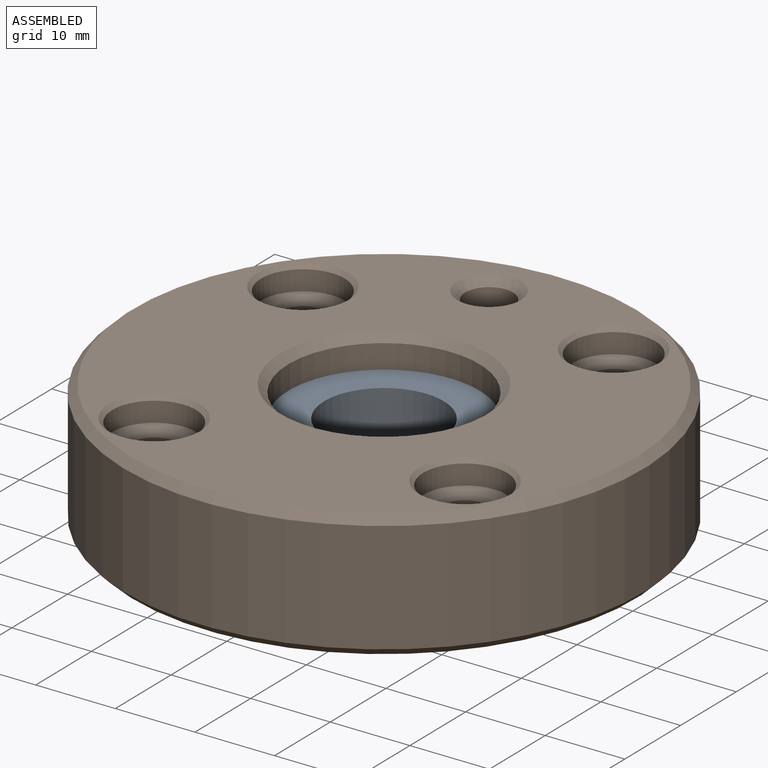
[diagram: assembled view]
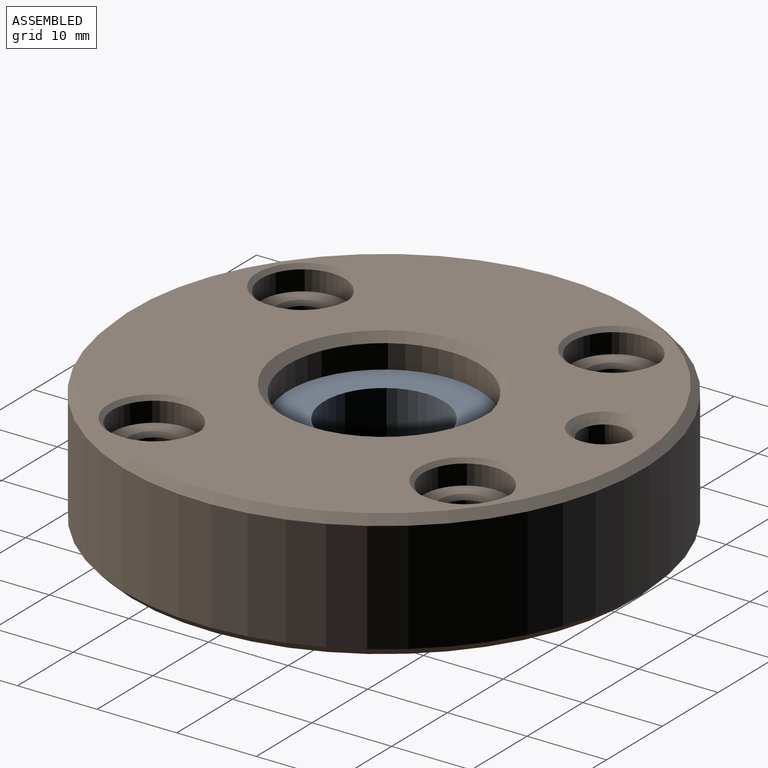
[diagram: assembled view, second angle]
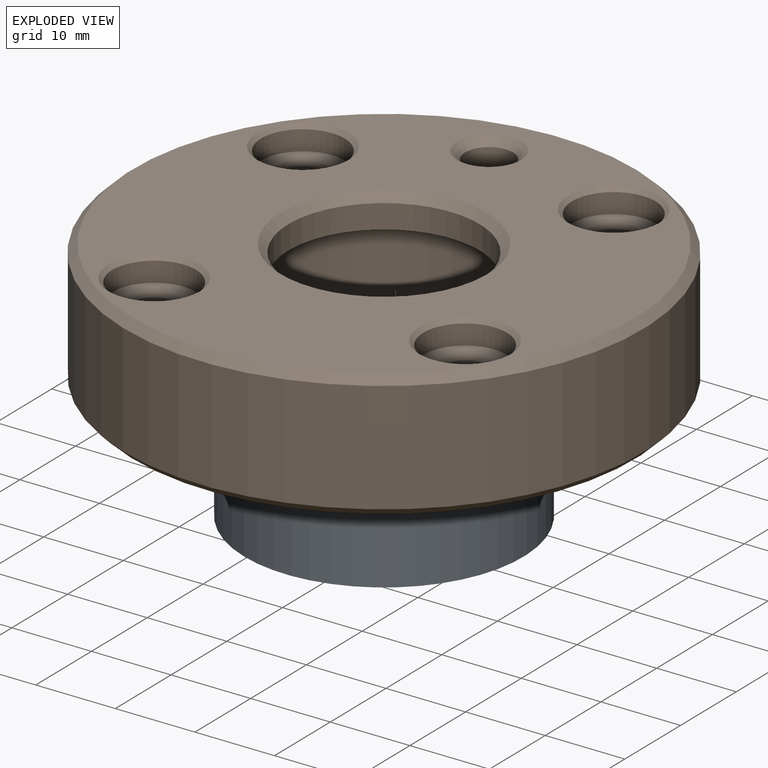
[diagram: exploded view]
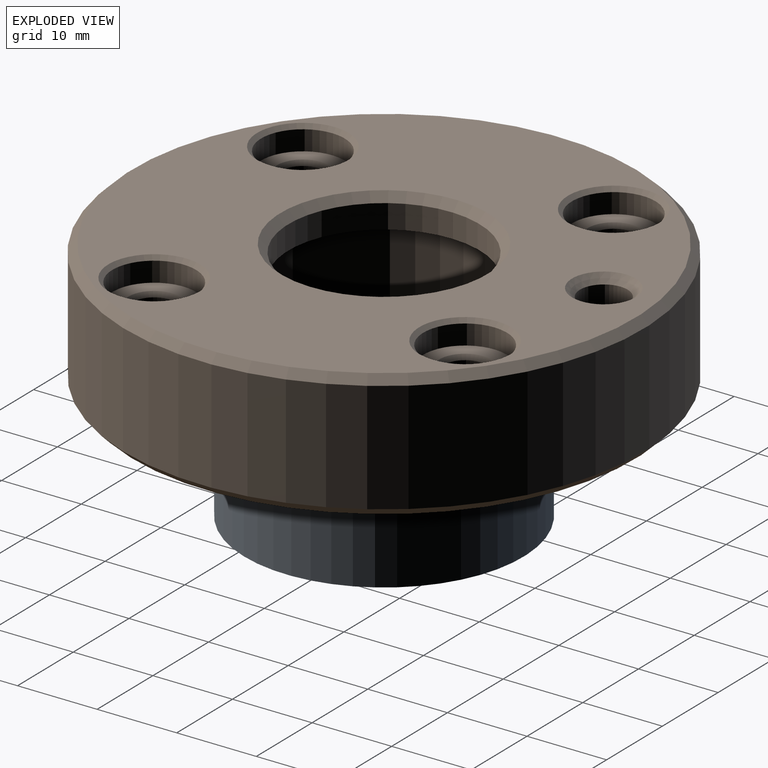
[diagram: exploded view, second angle]
ASSEMBLY  parts=2 mates=3
PART A: 4 faces, bbox 35x35x11 mm
  f0: cylinder r=7.5mm len=15mm, axis (0,0,-1), area 518.4mm2, adj f2,f3
  f1: cylinder r=17.5mm len=35mm, axis (0,0,-1), area 1209.5mm2, adj f2,f3
  f2: plane 35x35mm, normal (0,0,1), area 785.4mm2, adj f0,f1
  f3: plane 35x35mm, normal (0,0,-1), area 785.4mm2, adj f0,f1
PART B: 37 faces, bbox 65.2x65.2x16 mm
  f0: cone r=3.25mm half-angle=45deg, axis (0,0,1), area 13.3mm2, adj f4,f5
  f1: cone r=2.75mm half-angle=45deg, axis (0,0,-1), area 13.3mm2, adj f5,f21
  f2: cone r=5.25mm half-angle=45deg, axis (0,0,1), area 24.4mm2, adj f3,f24
  f3: cylinder r=5.25mm len=10.5mm, axis (0,0,1), area 82.5mm2, adj f2,f4
  f4: plane 10.5x10.5mm, normal (0,0,1), area 53.4mm2, adj f0,f3
  f5: cylinder r=2.75mm len=12mm, axis (0,0,-1), area 207.3mm2, adj f0,f1
  f6: cone r=3.25mm half-angle=45deg, axis (0,0,1), area 13.3mm2, adj f10,f11
  f7: cone r=2.75mm half-angle=45deg, axis (0,0,-1), area 13.3mm2, adj f11,f21
  f8: cone r=5.25mm half-angle=45deg, axis (0,0,1), area 24.4mm2, adj f9,f24
  f9: cylinder r=5.25mm len=10.5mm, axis (0,0,1), area 82.5mm2, adj f8,f10
  f10: plane 10.5x10.5mm, normal (0,0,1), area 53.4mm2, adj f6,f9
  f11: cylinder r=2.75mm len=12mm, axis (0,0,-1), area 207.3mm2, adj f6,f7
  f12: cone r=3.25mm half-angle=45deg, axis (0,0,1), area 13.3mm2, adj f16,f17
  f13: cone r=2.75mm half-angle=45deg, axis (0,0,-1), area 13.3mm2, adj f17,f21
  f14: cone r=5.25mm half-angle=45deg, axis (0,0,1), area 24.4mm2, adj f15,f24
  f15: cylinder r=5.25mm len=10.5mm, axis (0,0,1), area 82.5mm2, adj f14,f16
  f16: plane 10.5x10.5mm, normal (0,0,1), area 53.4mm2, adj f12,f15
  f17: cylinder r=2.75mm len=12mm, axis (0,0,-1), area 207.3mm2, adj f12,f13
  f18: cylinder r=2.75mm len=12mm, axis (0,0,-1), area 207.3mm2, adj f28,f29
  f19: cylinder r=17.57mm len=35.15mm, axis (0,0,-1), area 1214.7mm2, adj f22,f33
  f20: cylinder r=32.58mm len=65.15mm, axis (0,0,-1), area 2865.4mm2, adj f34,f35
  f21: plane 63.15x63.15mm, normal (0,0,-1), area 1865.2mm2, adj f1,f7,f13,f28,f32,f33,f34
  f22: plane 35.15x35.15mm, normal (0,0,-1), area 518mm2, adj f19,f23
  f23: cylinder r=12mm len=24mm, axis (0,0,-1), area 226.2mm2, adj f22,f36
  f24: plane 63.15x63.15mm, normal (0,0,1), area 2135.4mm2, adj f2,f8,f14,f27,f31,f35,f36
  f25: plane 10.5x10.5mm, normal (0,0,1), area 53.4mm2, adj f26,f29
  f26: cylinder r=5.25mm len=10.5mm, axis (0,0,1), area 82.5mm2, adj f25,f27
  f27: cone r=5.25mm half-angle=45deg, axis (0,0,1), area 24.4mm2, adj f24,f26
  f28: cone r=2.75mm half-angle=45deg, axis (0,0,-1), area 13.3mm2, adj f18,f21
  f29: cone r=3.25mm half-angle=45deg, axis (0,0,1), area 13.3mm2, adj f18,f25
  f30: cylinder r=3mm len=14mm, axis (0,0,1), area 263.9mm2, adj f31,f32
  f31: cone r=3mm half-angle=45deg, axis (0,0,1), area 31.1mm2, adj f24,f30
  f32: cone r=4mm half-angle=45deg, axis (0,0,-1), area 31.1mm2, adj f21,f30
  f33: cone r=18.58mm half-angle=45deg, axis (0,0,-1), area 160.6mm2, adj f19,f21
  f34: cone r=32.58mm half-angle=45deg, axis (0,0,1), area 285mm2, adj f20,f21
  f35: cone r=31.57mm half-angle=45deg, axis (0,0,-1), area 285mm2, adj f20,f24
  f36: cone r=12mm half-angle=45deg, axis (0,0,1), area 111.1mm2, adj f23,f24
PLACE A rot(axis=(0,0,-1),35.6deg) t=(-1.33,0.1,-3.78)mm
PLACE B rot(axis=(0,0,-1),35.6deg) t=(-1.33,0.1,-4.78)mm fixed
MATE cylindrical B.f19 <-> A.f1  axis (0,0,-1) through (-1.33,0.1,1.72)mm
MATE planar B.f19 <-> A.f1  axis (0,0,-1) through (-1.33,0.1,7.22)mm
MATE slider B.f20 <-> A.f0  axis (0,0,-1) through (-1.33,0.1,3.22)mm
